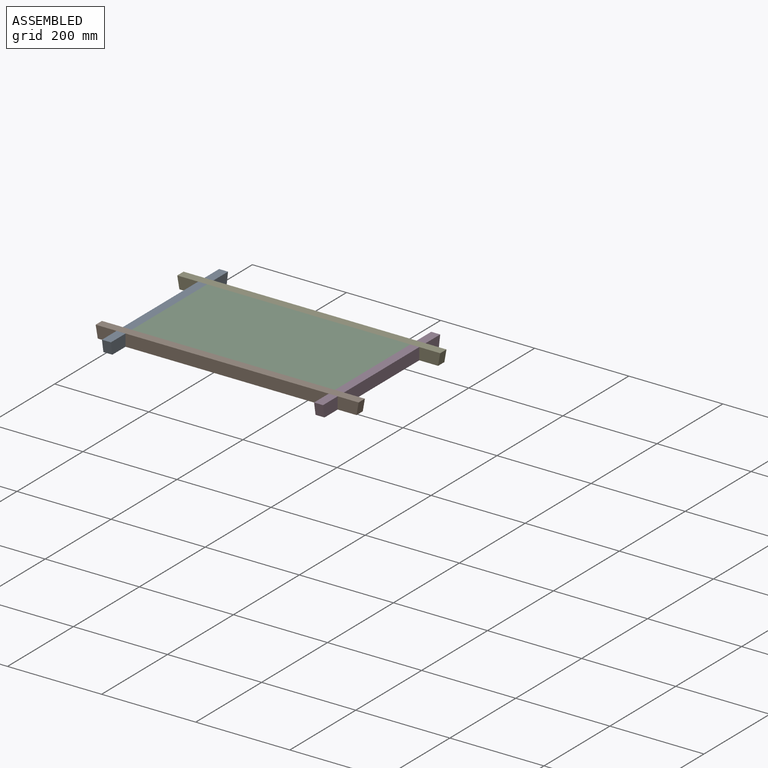
[diagram: assembled view]
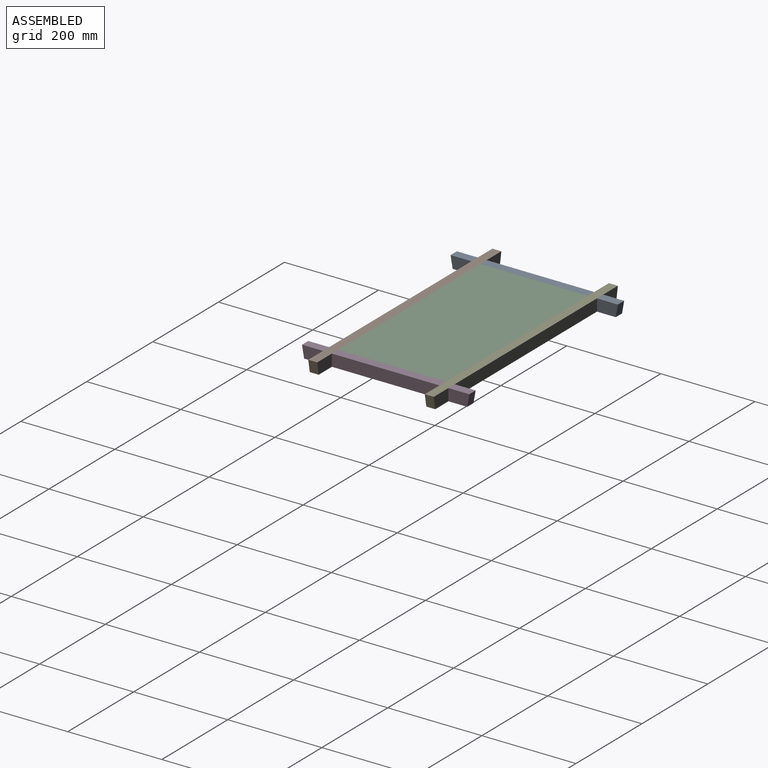
[diagram: assembled view, second angle]
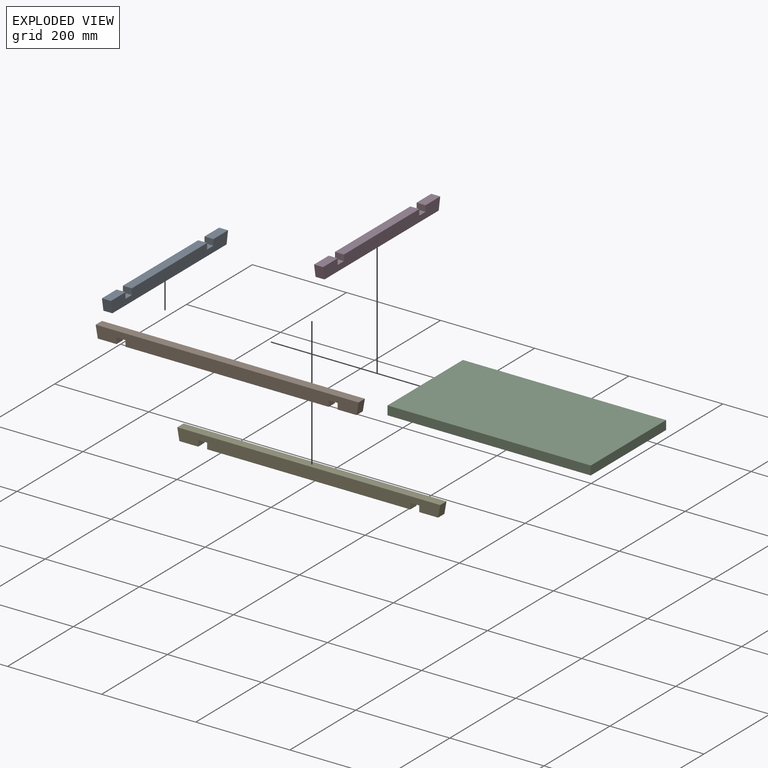
[diagram: exploded view]
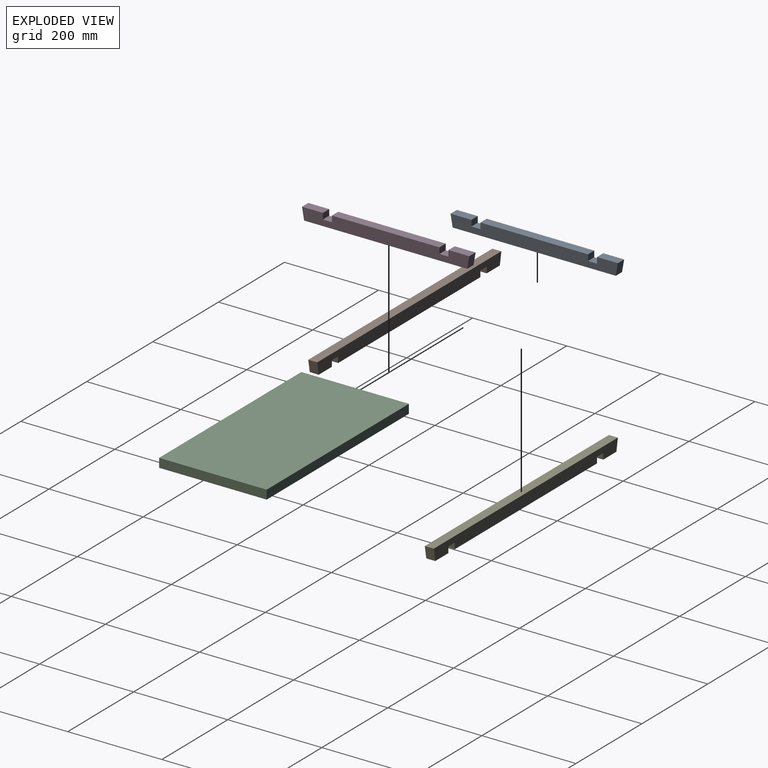
[diagram: exploded view, second angle]
ASSEMBLY  parts=5 mates=4
PART A: 14 faces, bbox 355.6x25.4x19.1 mm
  f0: plane 19.05x12.7mm, normal (-1,0,0), area 241.9mm2, adj f1,f11,f12,f13
  f1: plane 19.05x19.05mm, normal (0,1,0), area 362.9mm2, adj f0,f2,f12,f13
  f2: plane 19.05x12.7mm, normal (1,0,0), area 241.9mm2, adj f1,f3,f12,f13
  f3: plane 228.6x19.05mm, normal (0,1,0), area 4354.8mm2, adj f2,f4,f12,f13
  f4: plane 19.05x12.7mm, normal (-1,0,0), area 241.9mm2, adj f3,f5,f12,f13
  f5: plane 19.05x19.05mm, normal (0,1,0), area 362.9mm2, adj f4,f6,f12,f13
  f6: plane 19.05x12.7mm, normal (1,0,0), area 241.9mm2, adj f5,f7,f12,f13
  f7: plane 44.45x19.05mm, normal (0,1,0), area 846.8mm2, adj f6,f8,f12,f13
  f8: plane 25.4x19.05mm, normal (-0.98,-0.17,0), area 491.3mm2, adj f7,f9,f12,f13
  f9: plane 346.64x19.05mm, normal (0,-1,0), area 6603.5mm2, adj f8,f10,f12,f13
  f10: plane 25.4x19.05mm, normal (0.98,-0.17,0), area 491.3mm2, adj f9,f11,f12,f13
  f11: plane 44.45x19.05mm, normal (0,1,0), area 846.8mm2, adj f0,f10,f12,f13
  f12: plane 355.6x25.4mm, normal (0,0,1), area 8434.6mm2, adj f0,f1,f2,f3,f4,f5,f6,f7
  f13: plane 355.6x25.4mm, normal (0,0,-1), area 8434.6mm2, adj f0,f1,f2,f3,f4,f5,f6,f7
PART B: 14 faces, bbox 558.8x19.1x25.4 mm
  f0: plane 431.8x19.05mm, normal (0,0,-1), area 8225.8mm2, adj f1,f11,f12,f13
  f1: plane 19.05x12.7mm, normal (1,0,0), area 241.9mm2, adj f0,f2,f12,f13
  f2: plane 19.05x19.05mm, normal (0,0,-1), area 362.9mm2, adj f1,f3,f12,f13
  f3: plane 19.05x12.7mm, normal (-1,0,0), area 241.9mm2, adj f2,f4,f12,f13
  f4: plane 39.97x19.05mm, normal (0,0,-1), area 761.5mm2, adj f3,f5,f12,f13
  f5: plane 25.4x19.05mm, normal (0.98,0,-0.17), area 491.3mm2, adj f4,f6,f12,f13
  f6: plane 558.8x19.05mm, normal (0,0,1), area 10645.1mm2, adj f5,f7,f12,f13
  f7: plane 25.4x19.05mm, normal (-0.98,0,-0.17), area 491.3mm2, adj f6,f8,f12,f13
  f8: plane 39.97x19.05mm, normal (0,0,-1), area 761.5mm2, adj f7,f9,f12,f13
  f9: plane 19.05x12.7mm, normal (1,0,0), area 241.9mm2, adj f8,f10,f12,f13
  f10: plane 19.05x19.05mm, normal (0,0,-1), area 362.9mm2, adj f9,f11,f12,f13
  f11: plane 19.05x12.7mm, normal (-1,0,0), area 241.9mm2, adj f0,f10,f12,f13
  f12: plane 558.8x25.4mm, normal (0,-1,0), area 13595.9mm2, adj f0,f1,f2,f3,f4,f5,f6,f7
  f13: plane 558.8x25.4mm, normal (0,1,0), area 13595.9mm2, adj f0,f1,f2,f3,f4,f5,f6,f7
PART C: 6 faces, bbox 431.8x228.6x19.1 mm
  f0: plane 228.6x19.05mm, normal (1,0,0), area 4354.8mm2, adj f1,f3,f4,f5
  f1: plane 431.8x19.05mm, normal (0,1,0), area 8225.8mm2, adj f0,f2,f4,f5
  f2: plane 228.6x19.05mm, normal (-1,0,0), area 4354.8mm2, adj f1,f3,f4,f5
  f3: plane 431.8x19.05mm, normal (0,-1,0), area 8225.8mm2, adj f0,f2,f4,f5
  f4: plane 431.8x228.6mm, normal (0,0,1), area 98709.5mm2, adj f0,f1,f2,f3
  f5: plane 431.8x228.6mm, normal (0,0,-1), area 98709.5mm2, adj f0,f1,f2,f3
PART D: same geometry as A
PART E: same geometry as B
PLACE A rot(axis=(0.58,0.58,0.58),120deg) t=(-234.95,50.8,0)mm
PLACE B rot(axis=(1,0,0),0deg) t=(-25.4,-114.3,0)mm
PLACE C rot(axis=(1,0,0),0deg) t=(0,0,-19.05)mm
PLACE D rot(axis=(0.58,0.58,0.58),120deg) t=(215.9,50.8,0)mm
PLACE E rot(axis=(1,0,0),0deg) t=(-25.4,133.35,0)mm
MATE fastened E.f10 <-> A.f1  axis (0,0,-1) through (-215.9,114.3,-12.7)mm
MATE fastened A.f5 <-> B.f10  axis (0,0,1) through (-215.9,-133.35,-12.7)mm
MATE fastened D.f5 <-> B.f2  axis (0,0,1) through (215.9,-114.3,-12.7)mm
MATE fastened D.f13 <-> C.f0  axis (-1,0,0) through (215.9,-114.3,0)mm
